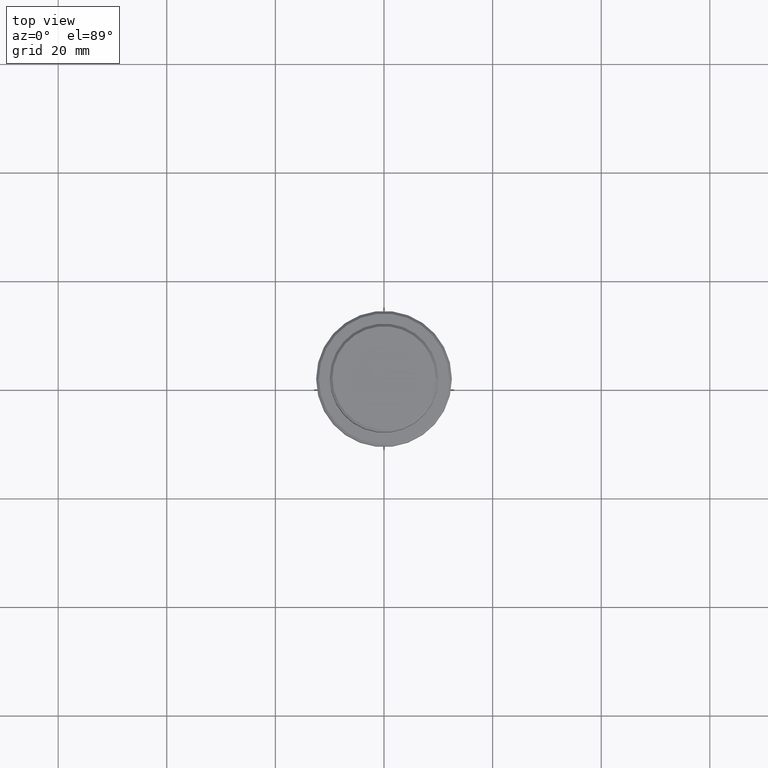
[diagram: clean part render]
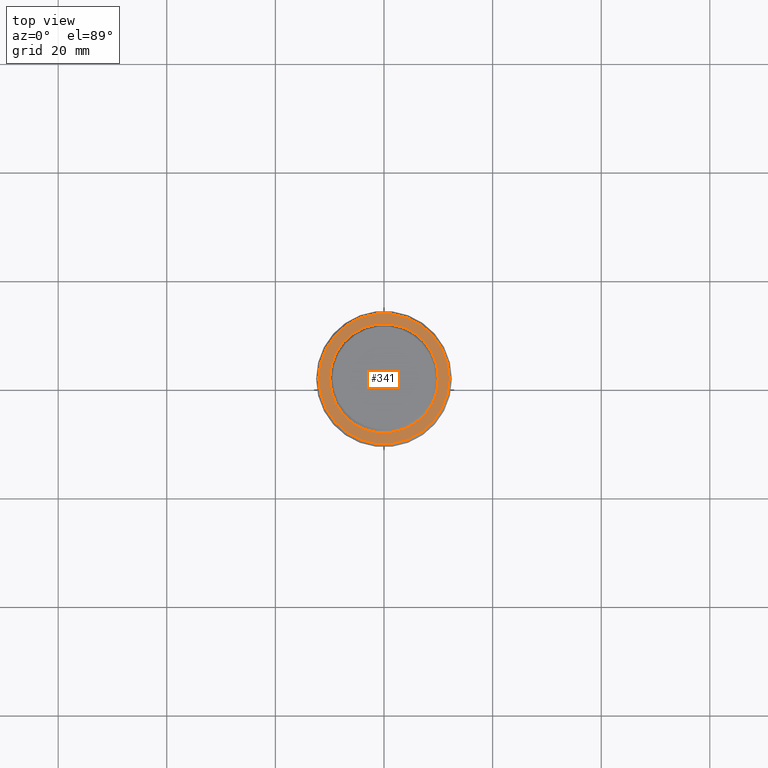
[diagram: same view with one face highlighted and labeled with its STEP entity id]
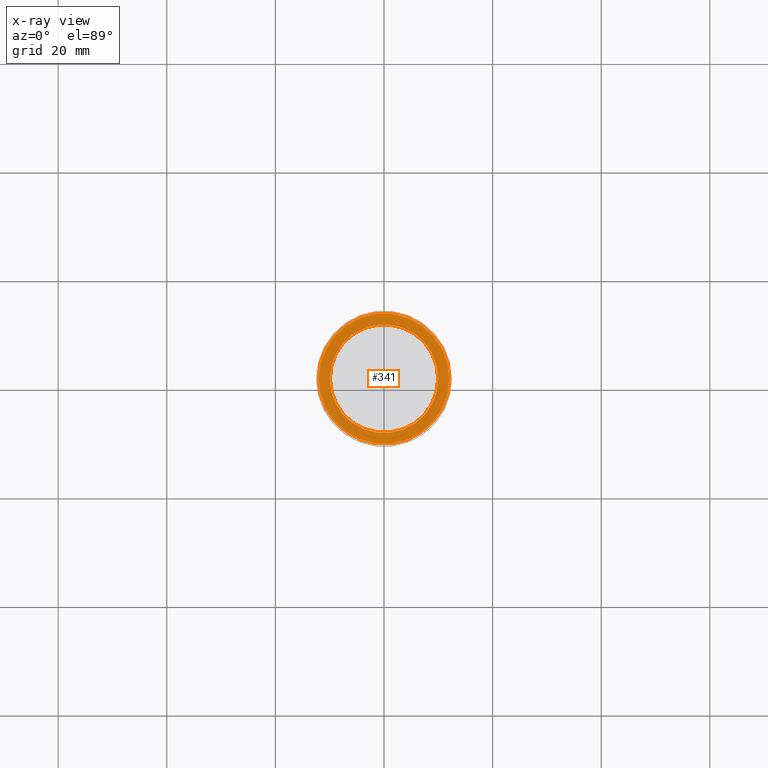
[diagram: x-ray of the same camera — body ghosted, the highlighted face saturated]
A machine part, top view. The second image highlights one B-rep face of the part: STEP entity #341.
The next image is the same camera in x-ray: the body ghosted, the highlighted face saturated — about 0% of this face is hidden behind the body in this view.
In plain terms, the highlighted planar face has unit normal (0, -0, 1).
Its self-contained STEP definition (entity closure, byte-faithful):
#42 = CARTESIAN_POINT ( 'NONE',  ( -12.00000000000001066, 0.000000000000000000, -9.000000000000000000 ) ) ;
#63 = ORIENTED_EDGE ( 'NONE', *, *, #1278, .T. ) ;
#105 = CARTESIAN_POINT ( 'NONE',  ( 12.00000000000001066, 1.500192328955508326E-15, -9.000000000000000000 ) ) ;
#160 = CARTESIAN_POINT ( 'NONE',  ( 0.000000000000000000, 0.000000000000000000, -9.000000000000000000 ) ) ;
#180 = CARTESIAN_POINT ( 'NONE',  ( 0.000000000000000000, 9.499999999999992895, -9.000000000000000000 ) ) ;
#181 = VERTEX_POINT ( 'NONE', #830 ) ;
#254 = ORIENTED_EDGE ( 'NONE', *, *, #275, .T. ) ;
#275 = EDGE_CURVE ( 'NONE', #925, #181, #701, .T. ) ;
#279 = DIRECTION ( 'NONE',  ( 1.000000000000000000, 0.000000000000000000, 0.000000000000000000 ) ) ;
#294 = DIRECTION ( 'NONE',  ( 0.000000000000000000, -0.000000000000000000, 1.000000000000000000 ) ) ;
#311 = FACE_BOUND ( 'NONE', #486, .T. ) ;
#313 = CARTESIAN_POINT ( 'NONE',  ( 0.000000000000000000, 0.000000000000000000, -9.000000000000000000 ) ) ;
#326 = AXIS2_PLACEMENT_3D ( 'NONE', #180, #294, #1162 ) ;
#341 = ADVANCED_FACE ( 'NONE', ( #415, #311 ), #1178, .T. ) ;
#352 = CIRCLE ( 'NONE', #1410, 12.00000000000001066 ) ;
#365 = ORIENTED_EDGE ( 'NONE', *, *, #1181, .T. ) ;
#383 = DIRECTION ( 'NONE',  ( 1.000000000000000000, 0.000000000000000000, 0.000000000000000000 ) ) ;
#389 = CIRCLE ( 'NONE', #592, 12.00000000000001066 ) ;
#401 = AXIS2_PLACEMENT_3D ( 'NONE', #313, #958, #979 ) ;
#411 = DIRECTION ( 'NONE',  ( 1.000000000000000000, 0.000000000000000000, 0.000000000000000000 ) ) ;
#415 = FACE_OUTER_BOUND ( 'NONE', #965, .T. ) ;
#448 = AXIS2_PLACEMENT_3D ( 'NONE', #689, #1046, #279 ) ;
#486 = EDGE_LOOP ( 'NONE', ( #365, #254 ) ) ;
#530 = VERTEX_POINT ( 'NONE', #105 ) ;
#592 = AXIS2_PLACEMENT_3D ( 'NONE', #160, #1360, #383 ) ;
#643 = VERTEX_POINT ( 'NONE', #42 ) ;
#667 = ORIENTED_EDGE ( 'NONE', *, *, #1038, .T. ) ;
#689 = CARTESIAN_POINT ( 'NONE',  ( 0.000000000000000000, 0.000000000000000000, -9.000000000000000000 ) ) ;
#701 = CIRCLE ( 'NONE', #448, 9.999999999999992895 ) ;
#830 = CARTESIAN_POINT ( 'NONE',  ( 9.999999999999992895, 0.000000000000000000, -9.000000000000000000 ) ) ;
#853 = DIRECTION ( 'NONE',  ( -0.000000000000000000, -0.000000000000000000, 1.000000000000000000 ) ) ;
#866 = CARTESIAN_POINT ( 'NONE',  ( 0.000000000000000000, 0.000000000000000000, -9.000000000000000000 ) ) ;
#912 = CARTESIAN_POINT ( 'NONE',  ( -9.999999999999992895, 1.224646799147352468E-15, -9.000000000000000000 ) ) ;
#925 = VERTEX_POINT ( 'NONE', #912 ) ;
#958 = DIRECTION ( 'NONE',  ( 0.000000000000000000, 0.000000000000000000, -1.000000000000000000 ) ) ;
#965 = EDGE_LOOP ( 'NONE', ( #667, #63 ) ) ;
#979 = DIRECTION ( 'NONE',  ( 1.000000000000000000, 0.000000000000000000, 0.000000000000000000 ) ) ;
#1038 = EDGE_CURVE ( 'NONE', #643, #530, #389, .T. ) ;
#1046 = DIRECTION ( 'NONE',  ( 0.000000000000000000, 0.000000000000000000, -1.000000000000000000 ) ) ;
#1162 = DIRECTION ( 'NONE',  ( 1.000000000000000000, 0.000000000000000000, 0.000000000000000000 ) ) ;
#1175 = CIRCLE ( 'NONE', #401, 9.999999999999992895 ) ;
#1178 = PLANE ( 'NONE',  #326 ) ;
#1181 = EDGE_CURVE ( 'NONE', #181, #925, #1175, .T. ) ;
#1278 = EDGE_CURVE ( 'NONE', #530, #643, #352, .T. ) ;
#1360 = DIRECTION ( 'NONE',  ( -0.000000000000000000, -0.000000000000000000, 1.000000000000000000 ) ) ;
#1410 = AXIS2_PLACEMENT_3D ( 'NONE', #866, #853, #411 ) ;